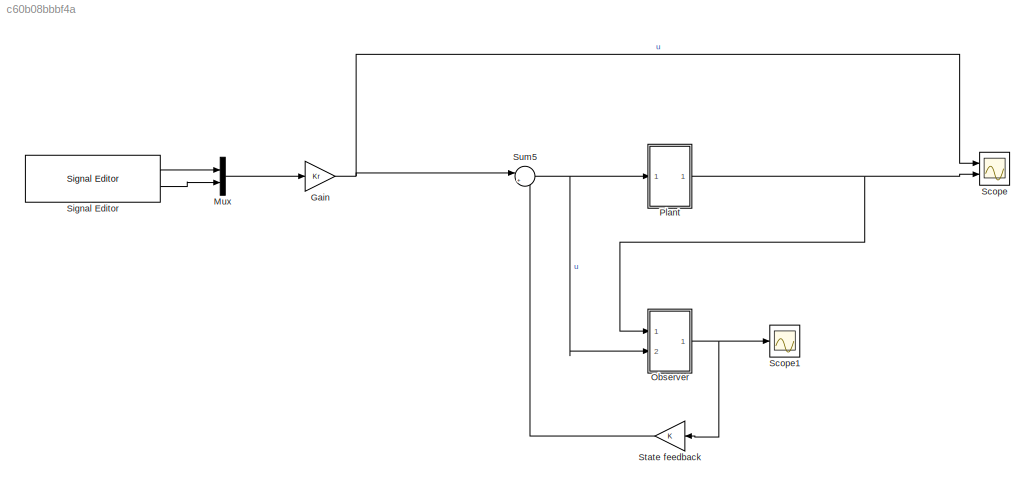
MODEL slx_c60b08bbbf4a
KIND model
CONFIG AbsTol = auto
CONFIG EnableMultiTasking = off
CONFIG FixedStep = auto
CONFIG MaxStep = auto
CONFIG MinStep = auto
CONFIG RelTol = 1e-3
CONFIG SampleTimeConstraint = Unconstrained
CONFIG SolverName = VariableStepAuto
CONFIG StartTime = 0.0
CONFIG StopTime = 10
BLOCK [Gain] Gain
  Gain = Kr
  Multiplication = Matrix(K*u)
BLOCK [Mux] Mux
  DisplayOption = bar
  Inputs = 2
  Ports = [2, 1]
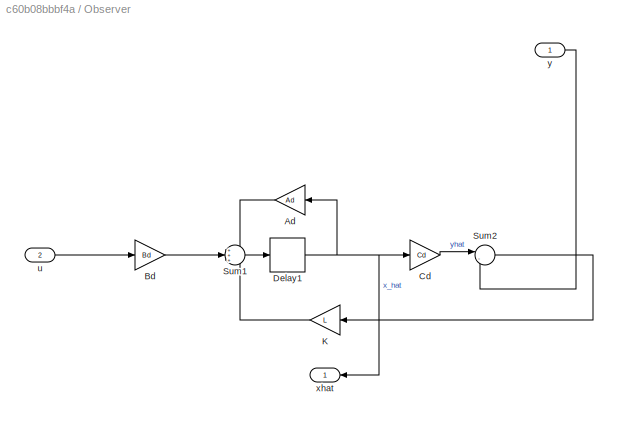
BLOCK [SubSystem] Observer
  Ports = [2, 1]
  RequestExecContextInheritance = off
BLOCK [Gain] Observer/Ad
  Gain = Ad
  Multiplication = Matrix(K*u)
  NameLocation = top
BLOCK [Gain] Observer/Bd
  Gain = Bd
  Multiplication = Matrix(K*u)
BLOCK [Gain] Observer/Cd
  Gain = Cd
  Multiplication = Matrix(K*u)
BLOCK [Delay] Observer/Delay1
  DelayLength = 1
  InputPortMap = u0
  Ports = [1, 1]
BLOCK [Gain] Observer/K
  Gain = L
  Multiplication = Matrix(K*u)
  NameLocation = top
BLOCK [Sum] Observer/Sum1
  Inputs = +++
  Ports = [3, 1]
BLOCK [Sum] Observer/Sum2
  Inputs = |-+
  Ports = [2, 1]
BLOCK [Inport] Observer/u
  Port = 2
BLOCK [Outport] Observer/xhat
  NameLocation = top
BLOCK [Inport] Observer/y
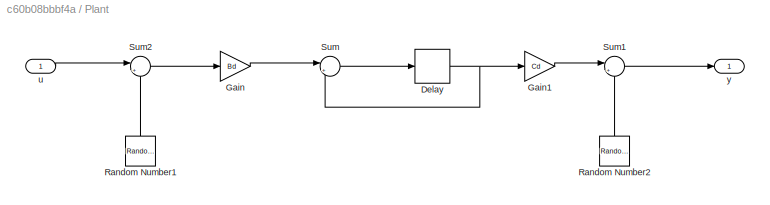
BLOCK [SubSystem] Plant
  Ports = [1, 1]
  RequestExecContextInheritance = off
BLOCK [Delay] Plant/Delay
  DelayLength = 1
  InitialCondition = 0
  InputPortMap = u0
  Ports = [1, 1]
BLOCK [Gain] Plant/Gain
  Gain = Bd
  Multiplication = Matrix(K*u)
BLOCK [Gain] Plant/Gain1
  Gain = Cd
  Multiplication = Matrix(K*u)
BLOCK [RandomNumber] Plant/Random Number1
  NameLocation = right
  SampleTime = Ts
  Variance = [var_va,var_Te]
BLOCK [RandomNumber] Plant/Random Number2
  NameLocation = right
  SampleTime = Ts
  Variance = [var_v1,var_v2]
BLOCK [Sum] Plant/Sum
  Inputs = |++
  Ports = [2, 1]
BLOCK [Sum] Plant/Sum1
  Inputs = |++
  Ports = [2, 1]
BLOCK [Sum] Plant/Sum2
  Inputs = |++
  Ports = [2, 1]
BLOCK [Inport] Plant/u
BLOCK [Outport] Plant/y
BLOCK [Scope] Scope
  Floating = off
  NumInputPorts = 2
  Ports = [2]
  ScopeSpecificationString = Simulink.scopes.TimeScopeBlockCfg('CurrentConfiguration', extmgr.ConfigurationSet(extmgr.Configuration('Core','General UI',true),extmgr.Configuration('Core','Source UI',true),extmgr.Configuration('Sources','WiredSimulink',true),extmgr.Configuration('Visuals','Time Domain',true,'SerializedDisplays',{struct('MinYLimReal','-15360329277903943247284000244725810450668487261810578347104998043318571782513...<+3828ch>
BLOCK [Scope] Scope1
  Floating = off
  NumInputPorts = 1
  Ports = [1]
  ScopeSpecificationString = Simulink.scopes.TimeScopeBlockCfg('CurrentConfiguration', extmgr.ConfigurationSet(extmgr.Configuration('Core','General UI',true),extmgr.Configuration('Core','Source UI',true),extmgr.Configuration('Sources','WiredSimulink',true,'DataLoggingVariableName','ScopeData1'),extmgr.Configuration('Visuals','Time Domain',true,'SerializedDisplays',{struct('MinYLimReal','-12014721364759732347290880580961818928...<+3926ch>
BLOCK [Reference] Signal Editor  REF=SignalEditorBlockLib/Signal Editor
  Ports = [0, 2]
  SourceBlock = SignalEditorBlockLib/Signal Editor
  SourceProductBaseCode = SL
  SourceType = SignalEditor
  UserDataPersistent = on
BLOCK [Gain] State feedback
  Gain = K
  Multiplication = Matrix(K*u)
  NameLocation = top
BLOCK [Sum] Sum5
  Inputs = |+-
  Ports = [2, 1]
NET Gain:1 -> Scope:1, Sum5:1
LINE Mux:1 -> Gain:1
LINE Observer/Ad:1 -> Observer/Sum1:1
LINE Observer/Bd:1 -> Observer/Sum1:2
LINE Observer/Cd:1 -> Observer/Sum2:1
NET Observer/Delay1:1 -> Observer/Ad:1, Observer/Cd:1, Observer/xhat:1
LINE Observer/K:1 -> Observer/Sum1:3
LINE Observer/Sum1:1 -> Observer/Delay1:1
LINE Observer/Sum2:1 -> Observer/K:1
LINE Observer/u:1 -> Observer/Bd:1
LINE Observer/y:1 -> Observer/Sum2:2
NET Observer:1 -> Scope1:1, State feedback:1
NET Plant/Delay:1 -> Plant/Gain1:1, Plant/Sum:2
LINE Plant/Gain1:1 -> Plant/Sum1:1
LINE Plant/Gain:1 -> Plant/Sum:1
LINE Plant/Random Number1:1 -> Plant/Sum2:2
LINE Plant/Random Number2:1 -> Plant/Sum1:2
LINE Plant/Sum1:1 -> Plant/y:1
LINE Plant/Sum2:1 -> Plant/Gain:1
LINE Plant/Sum:1 -> Plant/Delay:1
LINE Plant/u:1 -> Plant/Sum2:1
NET Plant:1 -> Observer:1, Scope:2
LINE Signal Editor:1 -> Mux:1
LINE Signal Editor:2 -> Mux:2
LINE State feedback:1 -> Sum5:2
NET Sum5:1 -> Observer:2, Plant:1
note: NET lines group one-source signal fan-out (src -> all destinations, sorted); 1:1 wires keep LINE
